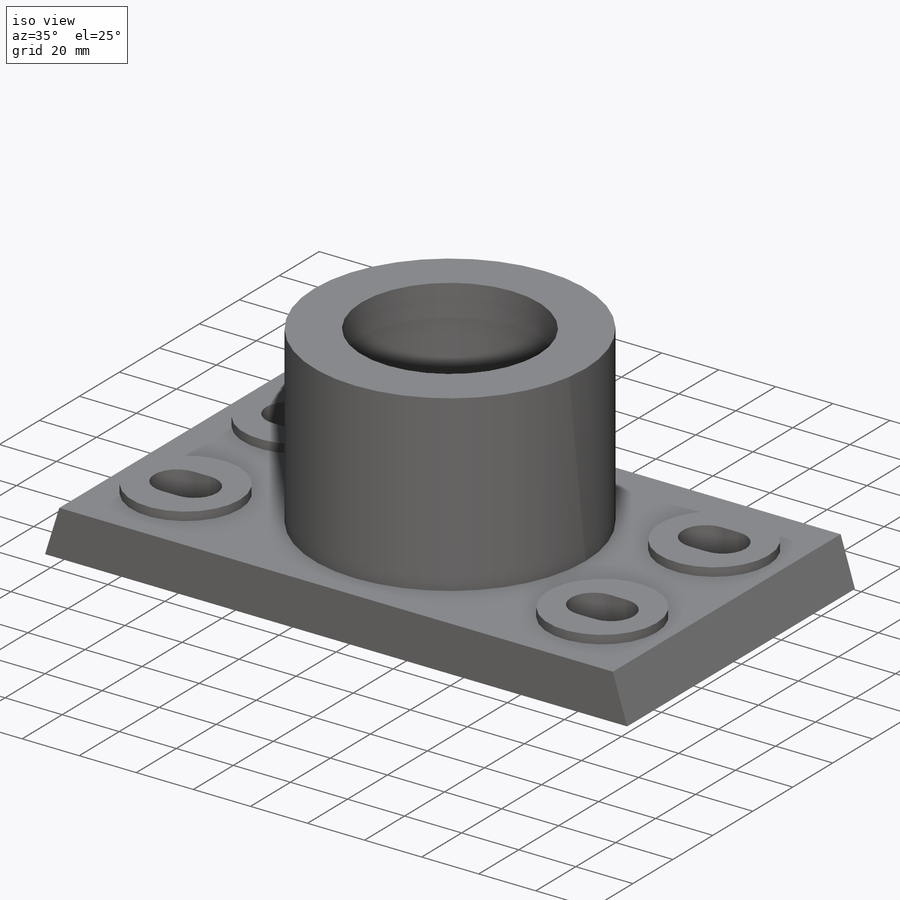
[diagram: iso view]
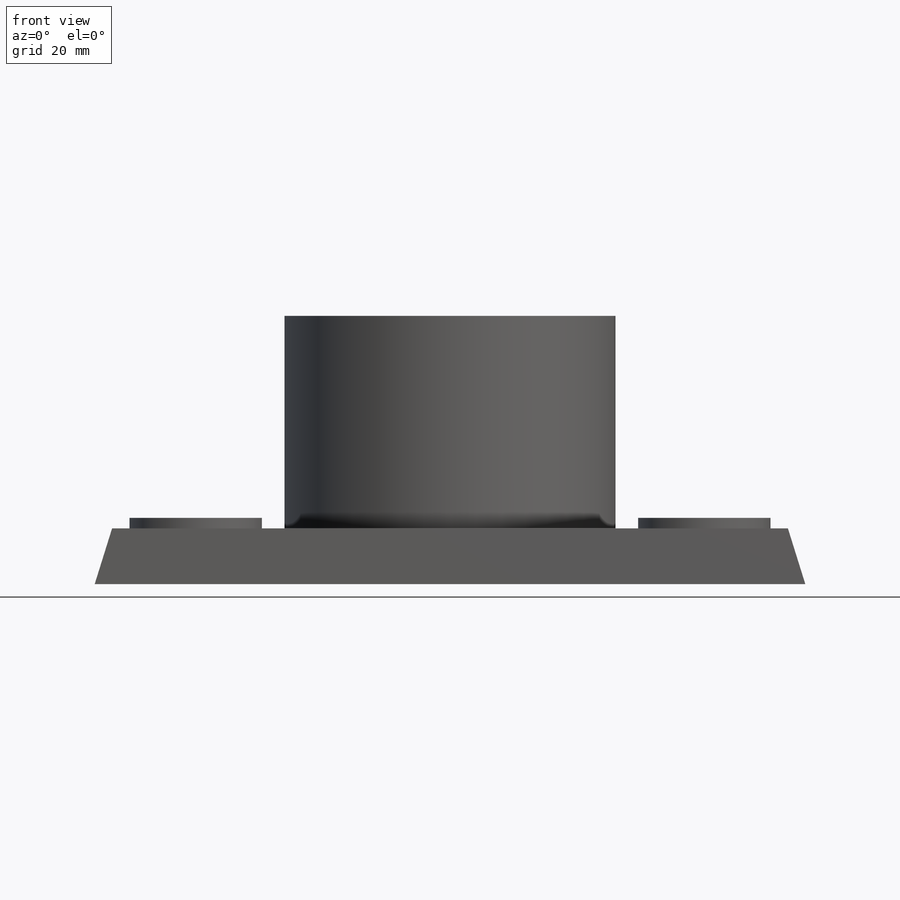
[diagram: front view]
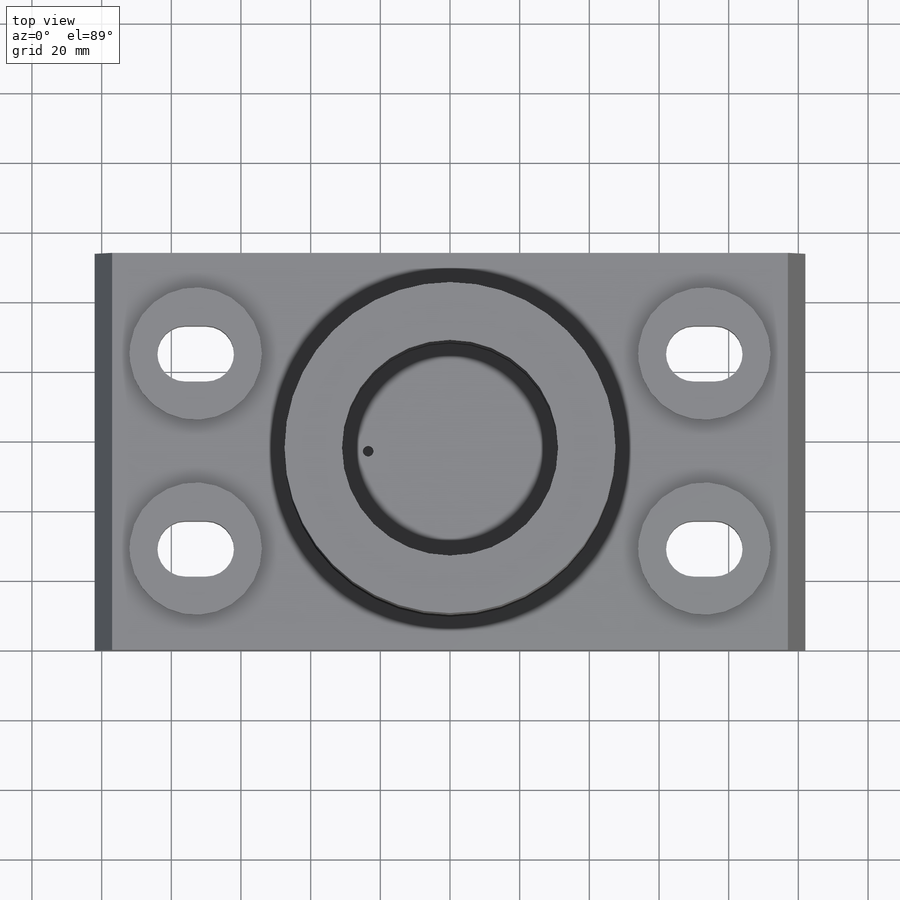
[diagram: top view]
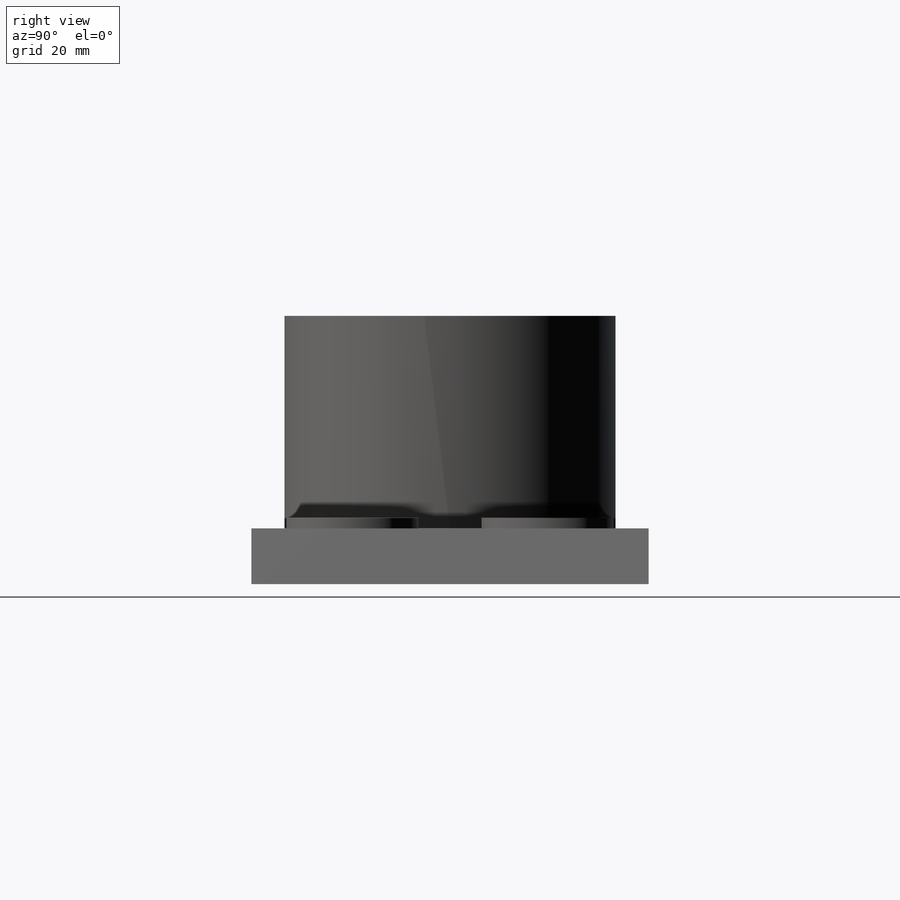
[diagram: right view]
SOLIDWORKS PART (.sldprt)
format: sldprt  version: not decoded by parser v0  size: 610,304 bytes
history: native  units: mm
features: sketch x7, extrude x3, cut_extrude x3, material x1, plane x1, cut_revolve x1 (+12 scaffold rows collapsed)
feature tree (28):
  scaffold x12  (default folders/planes/origin — collapsed)
  material  "Material <not specified>"
  sketch  "Sketch2"  dims[D1=204.0mm D2=16.0mm D3=5.0mm]
  extrude  "Boss-Extrude1"  Depth=114mm
  sketch  "Sketch3"  dims[D1=82.5mm D2=10.0mm D3=47.0mm D4=57.0mm D5=9.5mm]
  cut_extrude  "Cut-Extrude1"  Depth=3mm
  sketch  "Sketch4"  dims[c1.D3=8.0mm c1.D1=16.0mm c1.D2=22.0mm c2.D3=29.0mm c2.D4=28.0mm]
  cut_extrude  "Cut-Extrude2"  [1 undecoded]
  sketch  "Sketch5"  dims[D1=38.0mm D2=29.0mm D3=28.0mm]
  extrude  "Boss-Extrude2"  Depth=3mm
  sketch  "Sketch6"  dims[D1=62.0mm D2=95.0mm D3=57.0mm D4=102.0mm]
  extrude  "Boss-Extrude4"  Depth=61mm
  plane  "Plane1"  Offset=57mm
  sketch  "Sketch8"  dims[D1=3.0mm D2=32.5mm D3=11.0mm]
  cut_revolve  "Cut-Revolve1"  Angle=360deg
  sketch  "Sketch9"  dims[c1.D2=3.0mm c1.D1=23.5mm c1.D3=57.0mm c2.D1=23.5mm c2.D3=~97.011597mm]
  cut_extrude  "Cut-Extrude3"  Depth=5mm
decode coverage: 13 of 14 modeling features carry decoded parameters
note: ~ marks probable driven/reference dimensions
note: 1 parameter value undecoded
note: suppression state not decoded; provenance and decode notes live in map.json
